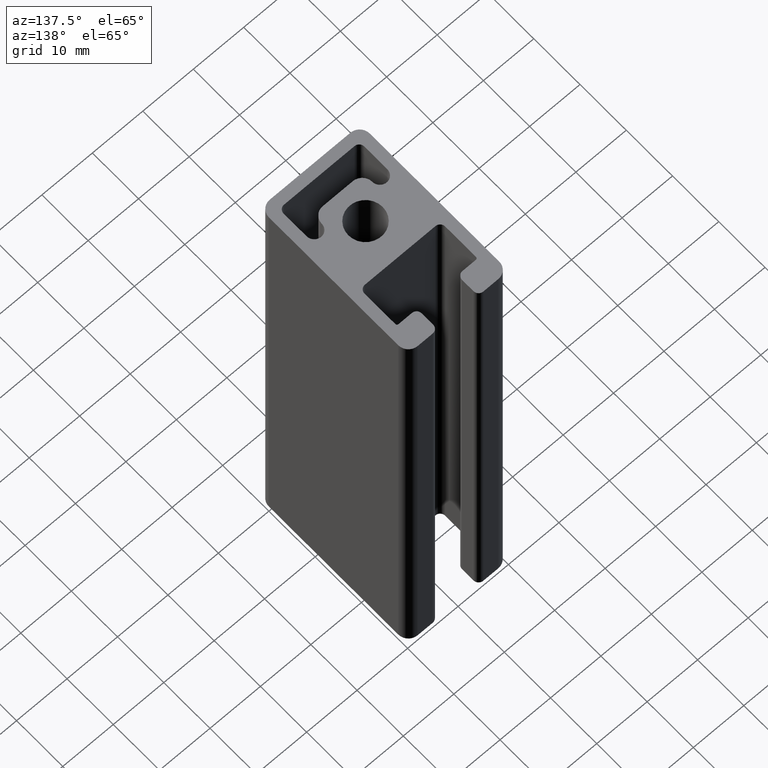
[diagram: clean part render]
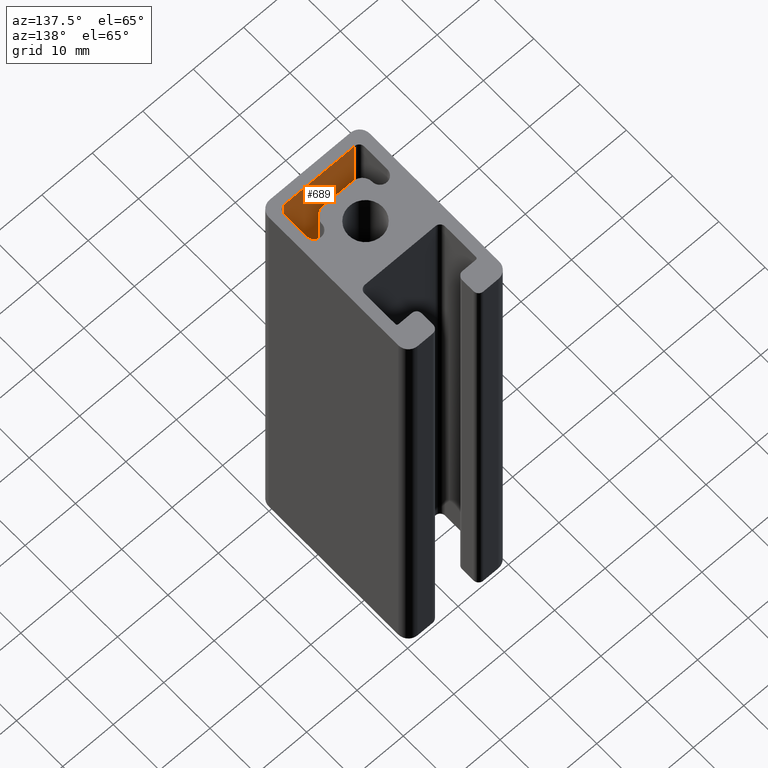
[diagram: same view with one face highlighted and labeled with its STEP entity id]
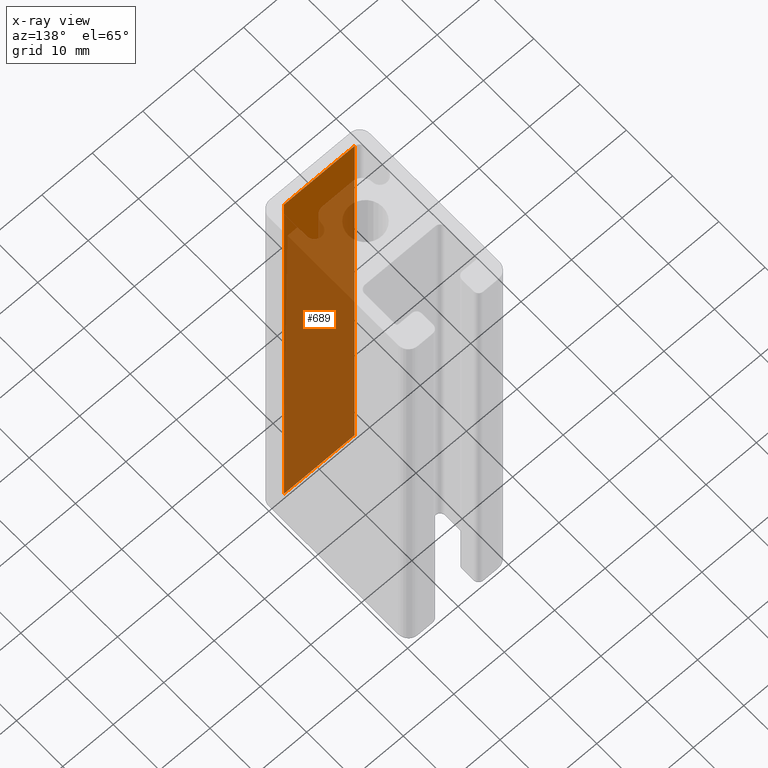
[diagram: x-ray of the same camera — body ghosted, the highlighted face saturated]
A machine part, auxiliary view. The second image highlights one B-rep face of the part: STEP entity #689.
The next image is the same camera in x-ray: the body ghosted, the highlighted face saturated — about 85% of this face is hidden behind the body in this view.
In plain terms, the highlighted planar face has unit normal (0, -1, 0).
Its self-contained STEP definition (entity closure, byte-faithful):
#15=LINE('',#1029,#81);
#16=LINE('',#1031,#82);
#17=LINE('',#1033,#83);
#18=LINE('',#1034,#84);
#81=VECTOR('',#812,14.0000011505603);
#82=VECTOR('',#813,100.);
#83=VECTOR('',#814,14.0000011505603);
#84=VECTOR('',#815,100.);
#147=PLANE('',#730);
#171=FACE_OUTER_BOUND('',#209,.T.);
#209=EDGE_LOOP('',(#463,#464,#465,#466));
#289=VERTEX_POINT('',#1027);
#290=VERTEX_POINT('',#1028);
#291=VERTEX_POINT('',#1030);
#292=VERTEX_POINT('',#1032);
#359=EDGE_CURVE('',#289,#290,#15,.T.);
#360=EDGE_CURVE('',#291,#289,#16,.T.);
#361=EDGE_CURVE('',#292,#291,#17,.T.);
#362=EDGE_CURVE('',#292,#290,#18,.T.);
#463=ORIENTED_EDGE('',*,*,#359,.F.);
#464=ORIENTED_EDGE('',*,*,#360,.F.);
#465=ORIENTED_EDGE('',*,*,#361,.F.);
#466=ORIENTED_EDGE('',*,*,#362,.T.);
#689=ADVANCED_FACE('',(#171),#147,.F.);
#730=AXIS2_PLACEMENT_3D('',#1026,#810,#811);
#810=DIRECTION('center_axis',(1.90323931437229E-15,-1.,0.));
#811=DIRECTION('ref_axis',(1.,1.95399252334028E-15,0.));
#812=DIRECTION('',(-1.,-1.90323931437229E-15,0.));
#813=DIRECTION('',(0.,0.,1.));
#814=DIRECTION('',(1.,1.90323931437229E-15,0.));
#815=DIRECTION('',(0.,0.,1.));
#1026=CARTESIAN_POINT('Origin',(-7.00000057528017,-10.,0.));
#1027=CARTESIAN_POINT('',(7.00000057528015,-9.99999999999999,100.));
#1028=CARTESIAN_POINT('',(-7.00000057528017,-10.,100.));
#1029=CARTESIAN_POINT('',(-3.50000028764007,-10.,100.));
#1030=CARTESIAN_POINT('',(7.00000057528015,-9.99999999999999,0.));
#1031=CARTESIAN_POINT('',(7.00000057528015,-9.99999999999999,0.));
#1032=CARTESIAN_POINT('',(-7.00000057528017,-10.,0.));
#1033=CARTESIAN_POINT('',(-3.50000028764007,-10.,0.));
#1034=CARTESIAN_POINT('',(-7.00000057528017,-10.,0.));